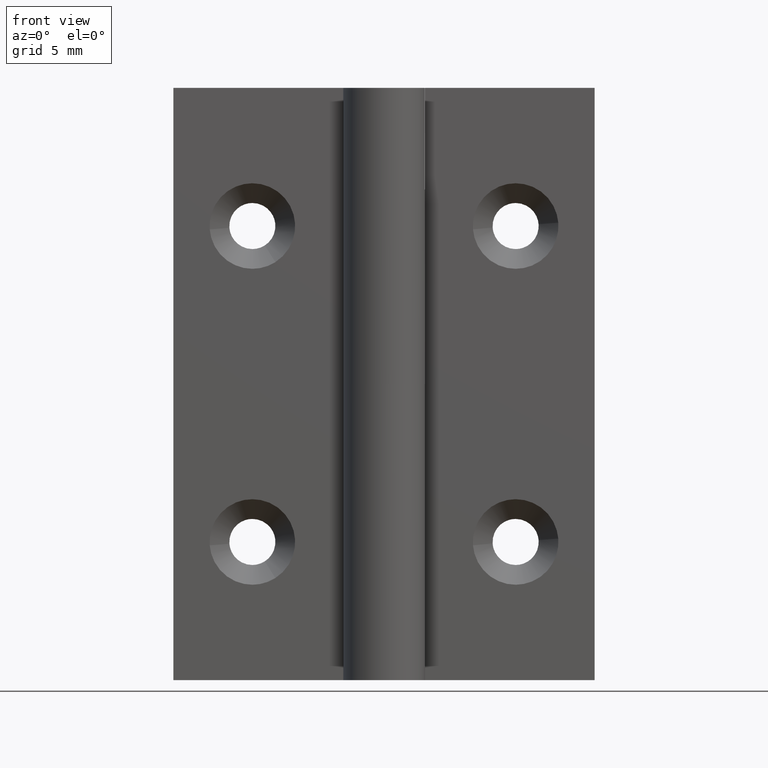
[diagram: clean part render]
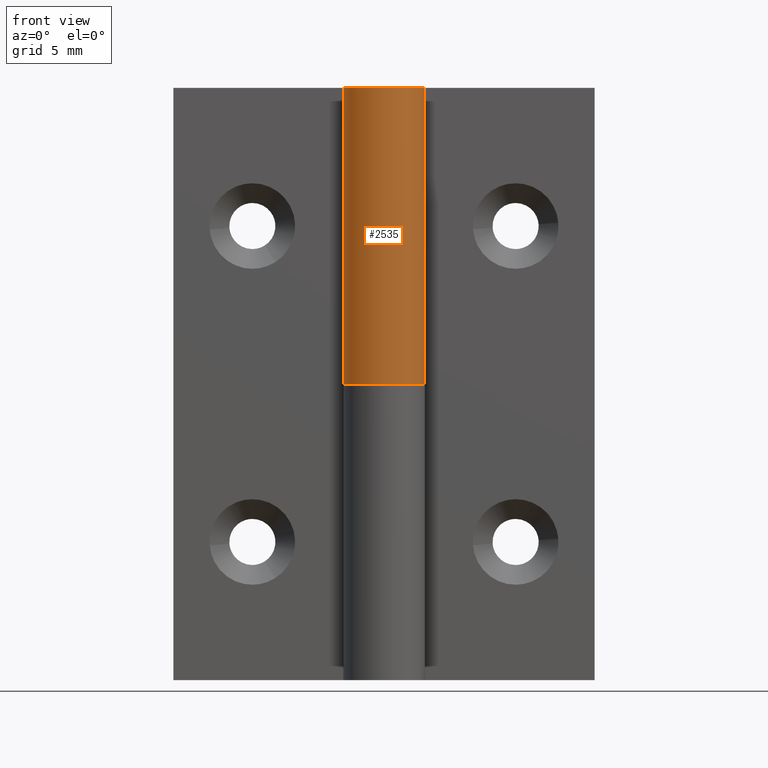
[diagram: same view with one face highlighted and labeled with its STEP entity id]
A machine part, front view. The second image highlights one B-rep face of the part: STEP entity #2535.
In plain terms, the highlighted face is a freeform B-spline surface patch.
Its self-contained STEP definition (entity closure, byte-faithful):
#2233=CARTESIAN_POINT('',(-2.739981751764050,1.450000000000000,22.500000000000000));
#2234=VERTEX_POINT('',#2233);
#2235=CARTESIAN_POINT('',(0.0,3.100000000000000,22.500000000000000));
#2236=VERTEX_POINT('',#2235);
#2237=CARTESIAN_POINT('',(-2.739981751764051,1.450000000000000,22.500000000000000));
#2238=CARTESIAN_POINT('',(-3.842027408336782,-0.632472405944905,22.500000000000011));
#2239=CARTESIAN_POINT('',(-2.130594885355311,-2.251791605477245,22.500000000000000));
#2240=CARTESIAN_POINT('',(-0.419162362373840,-3.871110805009586,22.500000000000011));
#2241=CARTESIAN_POINT('',(1.599218559171949,-2.655654344977899,22.500000000000000));
#2242=CARTESIAN_POINT('',(3.617599480717736,-1.440197884946214,22.500000000000011));
#2243=CARTESIAN_POINT('',(2.986848545660751,0.829901057526893,22.500000000000000));
#2244=CARTESIAN_POINT('',(2.356097610603767,3.099999999999999,22.500000000000011));
#2245=CARTESIAN_POINT('',(0.0,3.100000000000000,22.500000000000000));
#2253=(BOUNDED_CURVE()B_SPLINE_CURVE(2,(#2237,#2238,#2239,#2240,#2241,#2242,#2243,#2244,#2245),.UNSPECIFIED.,.F.,.U.)B_SPLINE_CURVE_WITH_KNOTS((3,2,2,2,3),(0.0,0.250000000000000,0.500000000000000,0.750000000000000,1.0),.UNSPECIFIED.)CURVE()GEOMETRIC_REPRESENTATION_ITEM()RATIONAL_B_SPLINE_CURVE((1.0,0.796150117301085,1.0,0.796150117301085,1.0,0.796150117301085,1.0,0.796150117301085,1.0))REPRESENTATION_ITEM(''));
#2254=EDGE_CURVE('',#2234,#2236,#2253,.T.);
#2305=CARTESIAN_POINT('',(-5.694420E-016,3.100000000000000,45.0));
#2306=VERTEX_POINT('',#2305);
#2347=CARTESIAN_POINT('',(-2.739981751764050,1.450000000000000,45.0));
#2348=VERTEX_POINT('',#2347);
#2354=CARTESIAN_POINT('',(0.0,3.100000000000000,45.0));
#2355=CARTESIAN_POINT('',(2.356097610603768,3.099999999999999,45.000000000000021));
#2356=CARTESIAN_POINT('',(2.986848545660752,0.829901057526892,45.0));
#2357=CARTESIAN_POINT('',(3.617599480717736,-1.440197884946215,45.000000000000021));
#2358=CARTESIAN_POINT('',(1.599218559171948,-2.655654344977900,45.0));
#2359=CARTESIAN_POINT('',(-0.419162362373840,-3.871110805009585,45.000000000000021));
#2360=CARTESIAN_POINT('',(-2.130594885355310,-2.251791605477246,45.0));
#2361=CARTESIAN_POINT('',(-3.842027408336782,-0.632472405944906,45.000000000000021));
#2362=CARTESIAN_POINT('',(-2.739981751764052,1.450000000000000,45.0));
#2370=(BOUNDED_CURVE()B_SPLINE_CURVE(2,(#2354,#2355,#2356,#2357,#2358,#2359,#2360,#2361,#2362),.UNSPECIFIED.,.F.,.U.)B_SPLINE_CURVE_WITH_KNOTS((3,2,2,2,3),(0.0,0.250000000000000,0.500000000000000,0.750000000000000,1.0),.UNSPECIFIED.)CURVE()GEOMETRIC_REPRESENTATION_ITEM()RATIONAL_B_SPLINE_CURVE((1.0,0.796150117301085,1.0,0.796150117301085,1.0,0.796150117301085,1.0,0.796150117301085,1.0))REPRESENTATION_ITEM(''));
#2371=EDGE_CURVE('',#2306,#2348,#2370,.T.);
#2494=CARTESIAN_POINT('',(-2.739981751764050,1.450000000000000,22.500000000000000));
#2495=CARTESIAN_POINT('',(-2.739981751764050,1.450000000000000,45.0));
#2496=QUASI_UNIFORM_CURVE('',1,(#2494,#2495),.UNSPECIFIED.,.F.,.U.);
#2497=EDGE_CURVE('',#2234,#2348,#2496,.T.);
#2503=CARTESIAN_POINT('',(-0.081148539754411,3.098937707424226,21.937500000000000));
#2504=CARTESIAN_POINT('',(-0.081148539754411,3.098937707424226,45.576562500000009));
#2505=CARTESIAN_POINT('',(3.655961651436519,3.196797381786166,21.937499999999996));
#2506=CARTESIAN_POINT('',(3.655961651436519,3.196797381786166,45.576562500000016));
#2507=CARTESIAN_POINT('',(3.060410250663860,-0.493851291009315,21.937500000000000));
#2508=CARTESIAN_POINT('',(3.060410250663860,-0.493851291009315,45.576562500000009));
#2509=CARTESIAN_POINT('',(2.464858849891201,-4.184499963804797,21.937499999999996));
#2510=CARTESIAN_POINT('',(2.464858849891201,-4.184499963804797,45.576562500000016));
#2511=CARTESIAN_POINT('',(-1.051784259909354,-2.916118974014422,21.937500000000000));
#2512=CARTESIAN_POINT('',(-1.051784259909354,-2.916118974014422,45.576562500000009));
#2513=CARTESIAN_POINT('',(-4.568427369709908,-1.647737984224047,21.937499999999996));
#2514=CARTESIAN_POINT('',(-4.568427369709908,-1.647737984224047,45.576562500000016));
#2515=CARTESIAN_POINT('',(-2.671050397368731,1.573368925178177,21.937500000000000));
#2516=CARTESIAN_POINT('',(-2.671050397368731,1.573368925178177,45.576562500000009));
#2524=(BOUNDED_SURFACE()B_SPLINE_SURFACE(1,2,((#2503,#2505,#2507,#2509,#2511,#2513,#2515),(#2504,#2506,#2508,#2510,#2512,#2514,#2516)),.UNSPECIFIED.,.F.,.F.,.U.)B_SPLINE_SURFACE_WITH_KNOTS((2,2),(3,2,2,3),(0.0,23.639062500000009),(0.0,5.826188062565750,11.652376125131500,17.478564187697248),.UNSPECIFIED.)GEOMETRIC_REPRESENTATION_ITEM()RATIONAL_B_SPLINE_SURFACE(((1.0,0.638320090924328,1.0,0.638320090924328,1.0,0.638320090924328,1.0),(1.0,0.638320090924328,1.0,0.638320090924328,1.0,0.638320090924328,1.0)))REPRESENTATION_ITEM('')SURFACE());
#2525=ORIENTED_EDGE('',*,*,#2497,.F.);
#2526=ORIENTED_EDGE('',*,*,#2254,.T.);
#2527=CARTESIAN_POINT('',(0.0,3.100000000000000,22.500000000000000));
#2528=CARTESIAN_POINT('',(-5.694420E-016,3.100000000000000,45.0));
#2529=QUASI_UNIFORM_CURVE('',1,(#2527,#2528),.UNSPECIFIED.,.F.,.U.);
#2530=EDGE_CURVE('',#2236,#2306,#2529,.T.);
#2531=ORIENTED_EDGE('',*,*,#2530,.T.);
#2532=ORIENTED_EDGE('',*,*,#2371,.T.);
#2533=EDGE_LOOP('',(#2525,#2526,#2531,#2532));
#2534=FACE_OUTER_BOUND('',#2533,.T.);
#2535=ADVANCED_FACE('',(#2534),#2524,.T.);